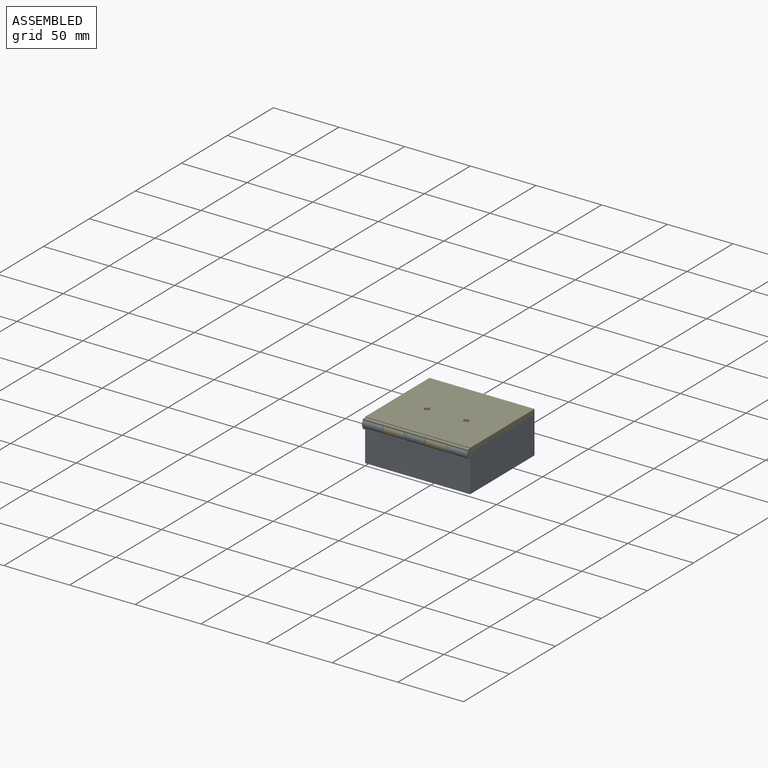
[diagram: assembled view]
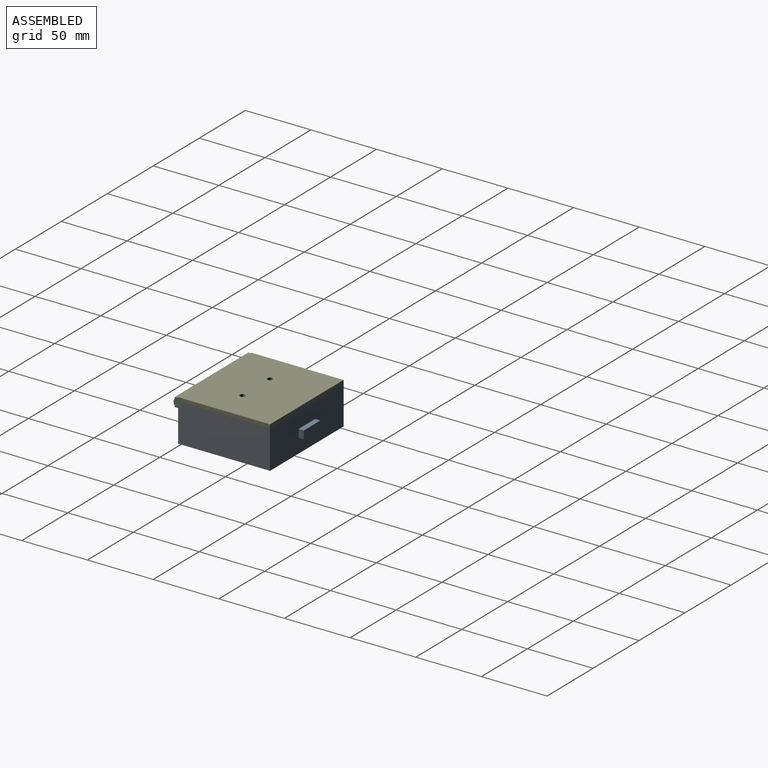
[diagram: assembled view, second angle]
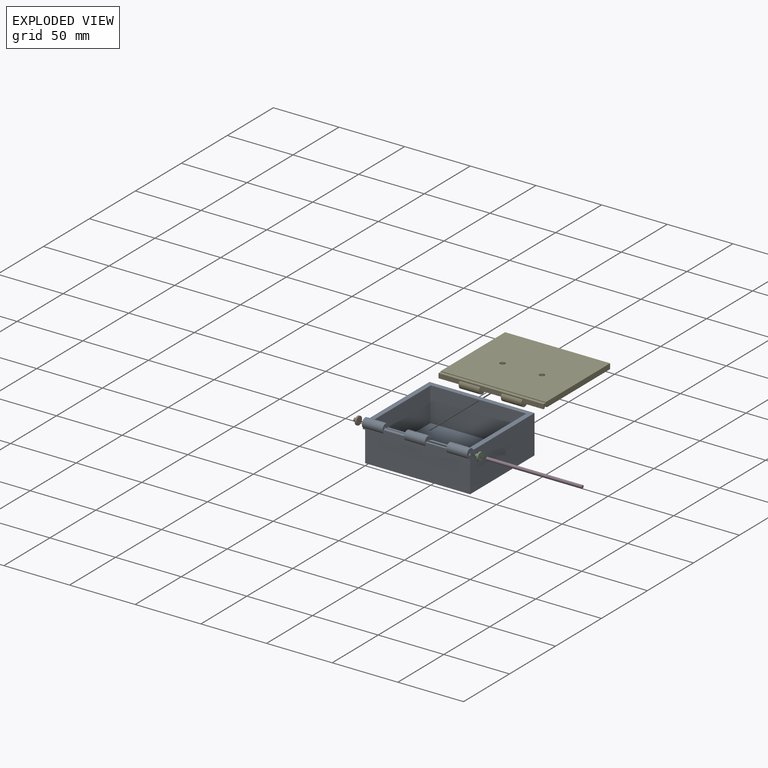
[diagram: exploded view]
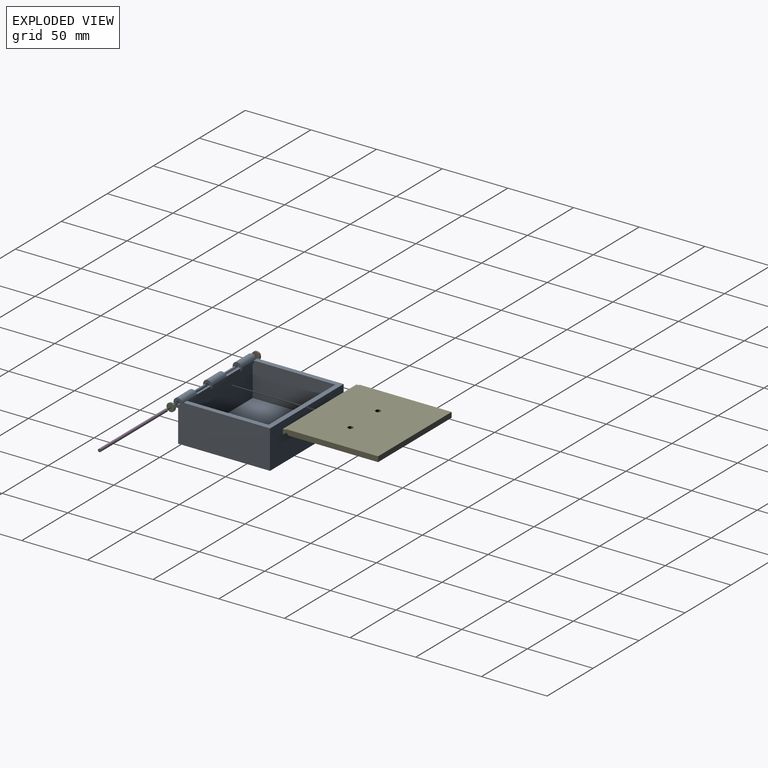
[diagram: exploded view, second angle]
FCSTD DOCUMENT  (FreeCAD 1.2R20260415 (Git shallow))
Label: Retainer_Box
License: All rights reserved
objects: App::Link×8, App::Point×7, Part::Feature×7, App::Part×6, App::FeaturePython×5, Assembly::JointGroup×1, Assembly::AssemblyObject×1
note: 7 computed .brp shape members not serialized (recipe doc carries the construction recipe); baked Part::Feature solids carry a one-line shape summary decoded from their .brp

FEATURE [App::Point] Origin001  label="Origin-Point"
  Role = Origin
FEATURE [Part::Feature] Box_Base_Shape
  shape: bbox 80 x 77.5 x 31.5 mm, 58 faces (baked)
FEATURE [App::Part] Box_Base
  Group = -> [Box_Base_Shape]
  Origin = -> Origin
FEATURE [App::Point] Origin003  label="Origin-Point001"
  Role = Origin
FEATURE [Part::Feature] Lid_Flat_Shape
  Placement = pos=(0,0,28) rot=(0,0,1;0rad)
  shape: bbox 80 x 73.5 x 7.5 mm, 34 faces (baked)
FEATURE [App::Part] Lid_Flat
  Group = -> [Lid_Flat_Shape]
  Origin = -> Origin002
FEATURE [App::Point] Origin005  label="Origin-Point002"
  Role = Origin
FEATURE [Part::Feature] Hinge_Pin_Shape
  shape: bbox 72.8 x 2.3 x 2.3 mm, 3 faces (baked)
FEATURE [App::Part] Hinge_Pin
  Group = -> [Hinge_Pin_Shape]
  Origin = -> Origin004
FEATURE [App::Point] Origin007  label="Origin-Point003"
  Role = Origin
FEATURE [Part::Feature] Hinge_End_Stop_Left_Shape
  shape: bbox 3.6 x 6.3 x 6.3 mm, 5 faces (baked)
FEATURE [App::Part] Hinge_End_Stop_Left
  Group = -> [Hinge_End_Stop_Left_Shape]
  Origin = -> Origin006
FEATURE [App::Point] Origin009  label="Origin-Point004"
  Role = Origin
FEATURE [Part::Feature] Hinge_End_Stop_Right_Shape
  Placement = pos=(76.4,0,0) rot=(0,0,1;0rad)
  shape: bbox 3.6 x 6.3 x 6.3 mm, 5 faces (baked)
FEATURE [App::Part] Hinge_End_Stop_Right
  Group = -> [Hinge_End_Stop_Right_Shape]
  Origin = -> Origin008
FEATURE [App::Point] Origin011  label="Origin-Point005"
  Role = Origin
FEATURE [App::Link] Box_Base_Link
  LinkTransform = true
  LinkedObject = -> Box_Base
FEATURE [App::Link] Lid_Flat_Link
  LinkTransform = true
  LinkedObject = -> Lid_Flat
FEATURE [App::Link] Hinge_Pin_Link
  LinkTransform = true
  LinkedObject = -> Hinge_Pin
FEATURE [App::Link] Hinge_End_Stop_Left_Link
  LinkTransform = true
  LinkedObject = -> Hinge_End_Stop_Left
FEATURE [App::Link] Hinge_End_Stop_Right_Link
  LinkTransform = true
  LinkedObject = -> Hinge_End_Stop_Right
FEATURE [App::Point] Origin013  label="Origin-Point006"
  Role = Origin
FEATURE [App::Link] Box_Base_Print
  LinkTransform = true
  LinkedObject = -> Box_Base
FEATURE [App::Link] Lid_Flat_Print
  LinkPlacement = pos=(100,0,-28) rot=(0,0,1;0rad)
  LinkTransform = true
  LinkedObject = -> Lid_Flat
  Placement = pos=(100,0,-28) rot=(0,0,1;0rad)
FEATURE [App::Link] Hinge_Pin_Print
  LinkPlacement = pos=(0,94,-26.85) rot=(0,0,1;0rad)
  LinkTransform = true
  LinkedObject = -> Hinge_Pin
  Placement = pos=(0,94,-26.85) rot=(0,0,1;0rad)
FEATURE [Part::Feature] Hinge_End_Stop_Left_Print
  Placement = pos=(75.15,97.15,3.6) rot=(0,1,0;1.5708rad)
  shape: bbox 6.3 x 6.3 x 3.6 mm, 5 faces (baked)
FEATURE [Part::Feature] Hinge_End_Stop_Right_Print
  Placement = pos=(95.15,97.15,3.6) rot=(0,1,0;1.5708rad)
  shape: bbox 6.3 x 6.3 x 3.6 mm, 5 faces (baked)
FEATURE [App::Part] Print_Layout
  Group = -> [Box_Base_Print,Lid_Flat_Print,Hinge_Pin_Print,Hinge_End_Stop_Left_Print,Hinge_End_Stop_Right_Print]
  Origin = -> Origin012
FEATURE [App::FeaturePython] Ground_Box  # Assembly grounded joint (typed FeaturePython)
  ObjectToGround = -> Box_Base_Link
FEATURE [App::FeaturePython] Lid_Hinge_Revolute  # Assembly joint (typed FeaturePython)
  Angle = 0
  AngleMax = 0
  AngleMin = 0
  Detach1 = true
  Detach2 = true
  Distance = 0
  Distance2 = 0
  EnableAngleMax = false
  EnableAngleMin = false
  EnableLengthMax = false
  EnableLengthMin = false
  JointType = 1 (Revolute)
  LengthMax = 0
  LengthMin = 0
  Placement1 = pos=(0,0,28) rot=(0,1,0;1.5708rad)
  Placement2 = pos=(0,0,28) rot=(0,1,0;1.5708rad)
  Reference1 = -> Hinge_Pin_Link
  Reference2 = -> Lid_Flat_Link
  Suppressed = false
FEATURE [App::FeaturePython] Pin_Fixed  # Assembly joint (typed FeaturePython)
  Angle = 0
  AngleMax = 0
  AngleMin = 0
  Detach1 = false
  Detach2 = false
  Distance = 0
  Distance2 = 0
  EnableAngleMax = false
  EnableAngleMin = false
  EnableLengthMax = false
  EnableLengthMin = false
  JointType = 0 (Fixed)
  LengthMax = 0
  LengthMin = 0
  Reference1 = -> Box_Base_Link
  Reference2 = -> Hinge_Pin_Link
  Suppressed = false
FEATURE [App::FeaturePython] Left_End_Stop_Fixed  # Assembly joint (typed FeaturePython)
  Angle = 0
  AngleMax = 0
  AngleMin = 0
  Detach1 = false
  Detach2 = false
  Distance = 0
  Distance2 = 0
  EnableAngleMax = false
  EnableAngleMin = false
  EnableLengthMax = false
  EnableLengthMin = false
  JointType = 0 (Fixed)
  LengthMax = 0
  LengthMin = 0
  Reference1 = -> Box_Base_Link
  Reference2 = -> Hinge_End_Stop_Left_Link
  Suppressed = false
FEATURE [App::FeaturePython] Right_End_Stop_Fixed  # Assembly joint (typed FeaturePython)
  Angle = 0
  AngleMax = 0
  AngleMin = 0
  Detach1 = false
  Detach2 = false
  Distance = 0
  Distance2 = 0
  EnableAngleMax = false
  EnableAngleMin = false
  EnableLengthMax = false
  EnableLengthMin = false
  JointType = 0 (Fixed)
  LengthMax = 0
  LengthMin = 0
  Reference1 = -> Box_Base_Link
  Reference2 = -> Hinge_End_Stop_Right_Link
  Suppressed = false
FEATURE [Assembly::JointGroup] Joints
  Group = -> [Ground_Box,Lid_Hinge_Revolute,Pin_Fixed,Left_End_Stop_Fixed,Right_End_Stop_Fixed]
FEATURE [Assembly::AssemblyObject] Assembly
  Group = -> [Joints,Box_Base_Link,Lid_Flat_Link,Hinge_Pin_Link,Hinge_End_Stop_Left_Link,Hinge_End_Stop_Right_Link,Ground_Box,Lid_Hinge_Revolute,Pin_Fixed,Left_End_Stop_Fixed,Right_End_Stop_Fixed]
  Origin = -> Origin010
  Type = Assembly
